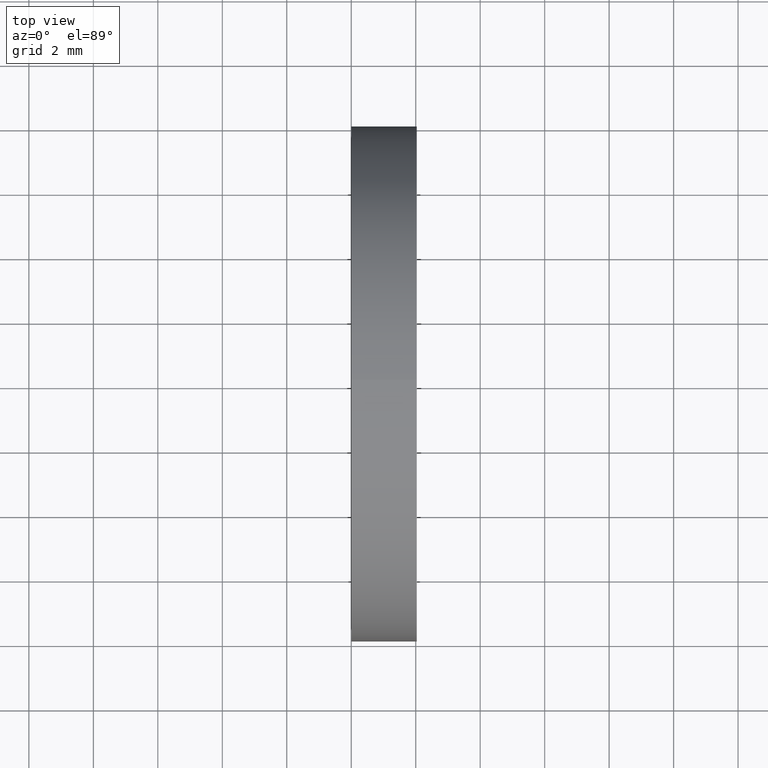
[diagram: clean part render]
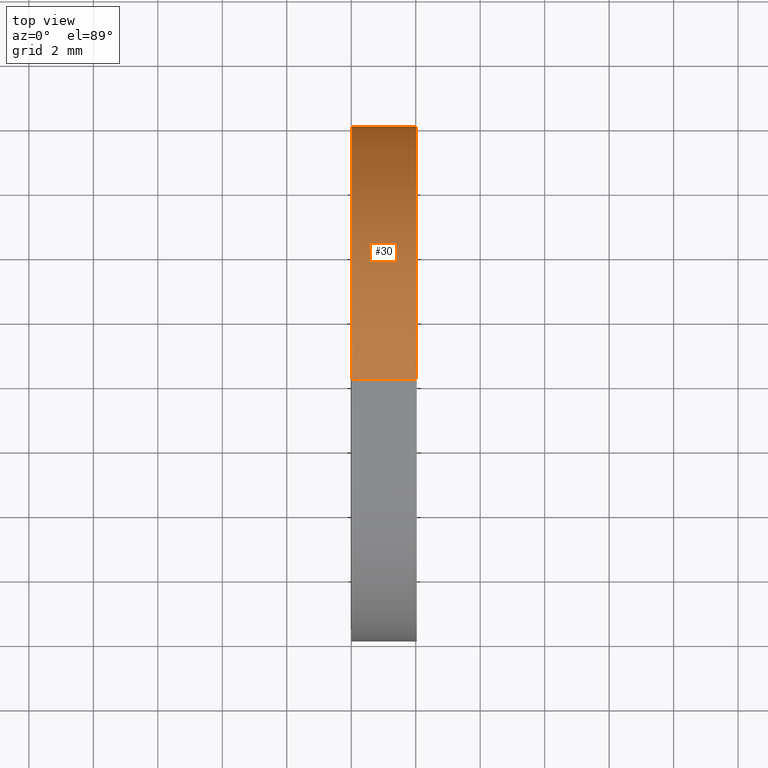
[diagram: same view with one face highlighted and labeled with its STEP entity id]
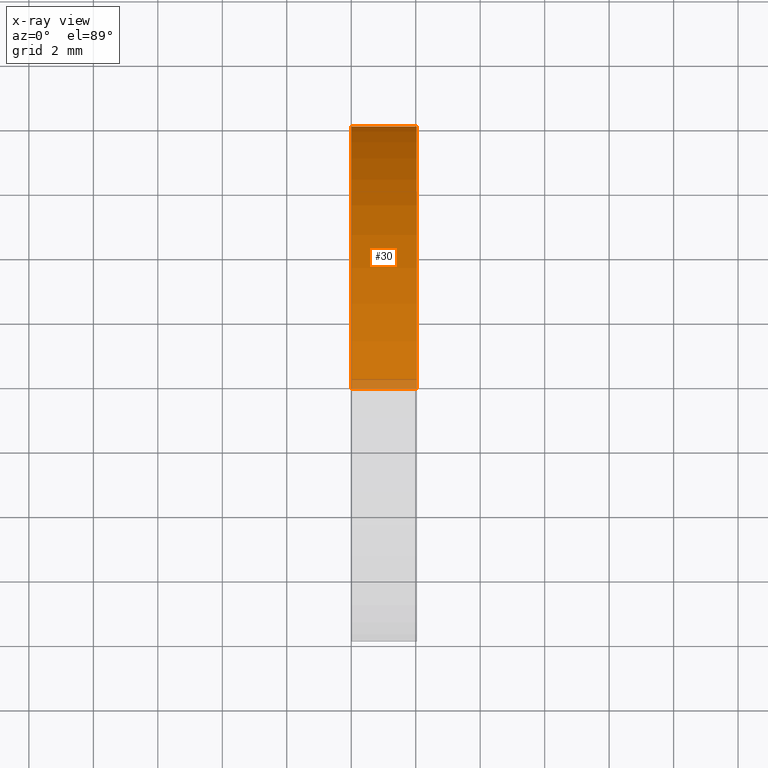
[diagram: x-ray of the same camera — body ghosted, the highlighted face saturated]
A machine part, top view. The second image highlights one B-rep face of the part: STEP entity #30.
The next image is the same camera in x-ray: the body ghosted, the highlighted face saturated — about 3% of this face is hidden behind the body in this view.
In plain terms, the highlighted cylindrical surface (partial cylindrical patch) has radius 8.001 mm, axis along (-1, 0, 0).
Its self-contained STEP definition (entity closure, byte-faithful):
#26 = EDGE_LOOP ( 'NONE', ( #57, #66, #49, #46 ) ) ;
#30 = ADVANCED_FACE ( 'NONE', ( #131 ), #126, .T. ) ;
#38 = VERTEX_POINT ( 'NONE', #71 ) ;
#43 = VERTEX_POINT ( 'NONE', #114 ) ;
#46 = ORIENTED_EDGE ( 'NONE', *, *, #47, .F. ) ;
#47 = EDGE_CURVE ( 'NONE', #43, #38, #108, .T. ) ;
#48 = EDGE_CURVE ( 'NONE', #50, #58, #104, .T. ) ;
#49 = ORIENTED_EDGE ( 'NONE', *, *, #56, .F. ) ;
#50 = VERTEX_POINT ( 'NONE', #100 ) ;
#56 = EDGE_CURVE ( 'NONE', #38, #58, #99, .T. ) ;
#57 = ORIENTED_EDGE ( 'NONE', *, *, #83, .T. ) ;
#58 = VERTEX_POINT ( 'NONE', #94 ) ;
#66 = ORIENTED_EDGE ( 'NONE', *, *, #48, .T. ) ;
#71 = CARTESIAN_POINT ( 'NONE',  ( 0.0000000000000000000, 0.0000000000000000000, 0.3150000000000000000 ) ) ;
#83 = EDGE_CURVE ( 'NONE', #43, #50, #175, .T. ) ;
#94 = CARTESIAN_POINT ( 'NONE',  ( 0.0000000000000000000, 3.857637417314162700E-017, -0.3150000000000000000 ) ) ;
#95 = DIRECTION ( 'NONE',  ( 0.0000000000000000000, 0.0000000000000000000, 1.000000000000000000 ) ) ;
#96 = DIRECTION ( 'NONE',  ( -1.000000000000000000, 0.0000000000000000000, 0.0000000000000000000 ) ) ;
#97 = CARTESIAN_POINT ( 'NONE',  ( 0.0000000000000000000, 0.0000000000000000000, 0.0000000000000000000 ) ) ;
#98 = AXIS2_PLACEMENT_3D ( 'NONE', #97, #96, #95 ) ;
#99 = CIRCLE ( 'NONE', #98, 0.3150000000000000000 ) ;
#100 = CARTESIAN_POINT ( 'NONE',  ( 0.07999999999999996000, 3.857637417314163300E-017, -0.3150000000000000600 ) ) ;
#101 = DIRECTION ( 'NONE',  ( -1.000000000000000000, 0.0000000000000000000, 0.0000000000000000000 ) ) ;
#102 = VECTOR ( 'NONE', #101, 39.37007874015748100 ) ;
#103 = CARTESIAN_POINT ( 'NONE',  ( -1.721125226614714300, 3.857637417314163300E-017, -0.3150000000000000600 ) ) ;
#104 = LINE ( 'NONE', #103, #102 ) ;
#105 = DIRECTION ( 'NONE',  ( -1.000000000000000000, 0.0000000000000000000, 0.0000000000000000000 ) ) ;
#106 = VECTOR ( 'NONE', #105, 39.37007874015748100 ) ;
#107 = CARTESIAN_POINT ( 'NONE',  ( -1.721125226614714300, 0.0000000000000000000, 0.3150000000000000600 ) ) ;
#108 = LINE ( 'NONE', #107, #106 ) ;
#114 = CARTESIAN_POINT ( 'NONE',  ( 0.07999999999999996000, 0.0000000000000000000, 0.3150000000000000600 ) ) ;
#122 = DIRECTION ( 'NONE',  ( 0.0000000000000000000, 0.0000000000000000000, 1.000000000000000000 ) ) ;
#123 = DIRECTION ( 'NONE',  ( -1.000000000000000000, 0.0000000000000000000, 0.0000000000000000000 ) ) ;
#124 = CARTESIAN_POINT ( 'NONE',  ( -1.721125226614714300, 0.0000000000000000000, 0.0000000000000000000 ) ) ;
#125 = AXIS2_PLACEMENT_3D ( 'NONE', #124, #123, #122 ) ;
#126 = CYLINDRICAL_SURFACE ( 'NONE', #125, 0.3150000000000000600 ) ;
#131 = FACE_OUTER_BOUND ( 'NONE', #26, .T. ) ;
#167 = DIRECTION ( 'NONE',  ( 0.0000000000000000000, 0.0000000000000000000, 1.000000000000000000 ) ) ;
#168 = DIRECTION ( 'NONE',  ( -1.000000000000000000, 0.0000000000000000000, 0.0000000000000000000 ) ) ;
#169 = CARTESIAN_POINT ( 'NONE',  ( 0.07999999999999996000, 0.0000000000000000000, 0.0000000000000000000 ) ) ;
#170 = AXIS2_PLACEMENT_3D ( 'NONE', #169, #168, #167 ) ;
#175 = CIRCLE ( 'NONE', #170, 0.3150000000000000600 ) ;